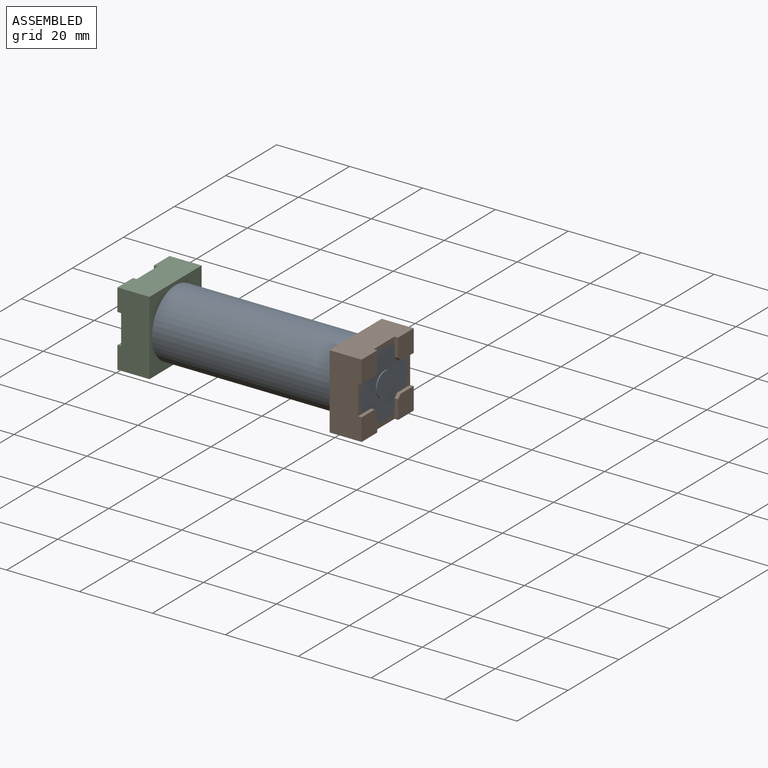
[diagram: assembled view]
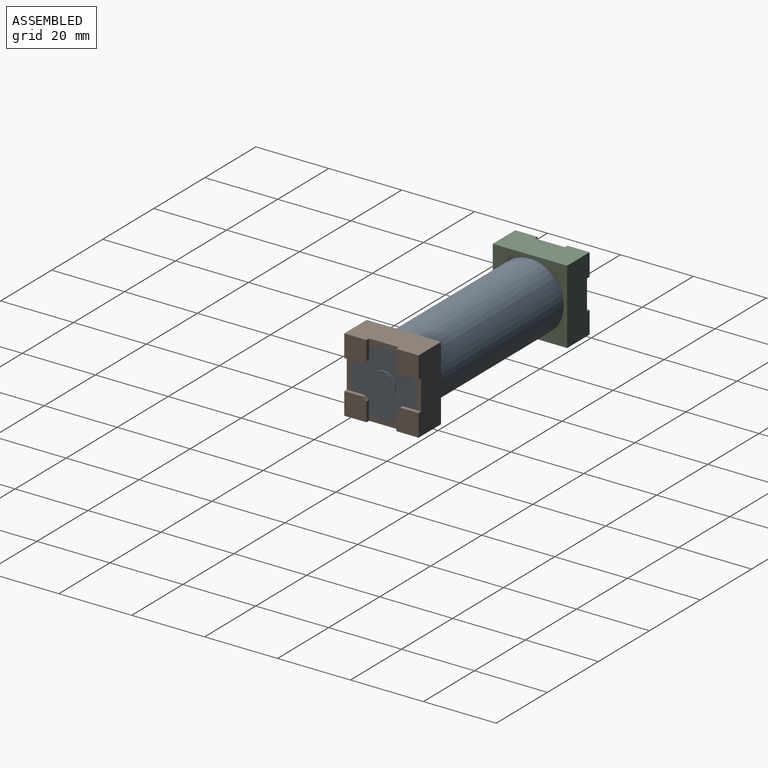
[diagram: assembled view, second angle]
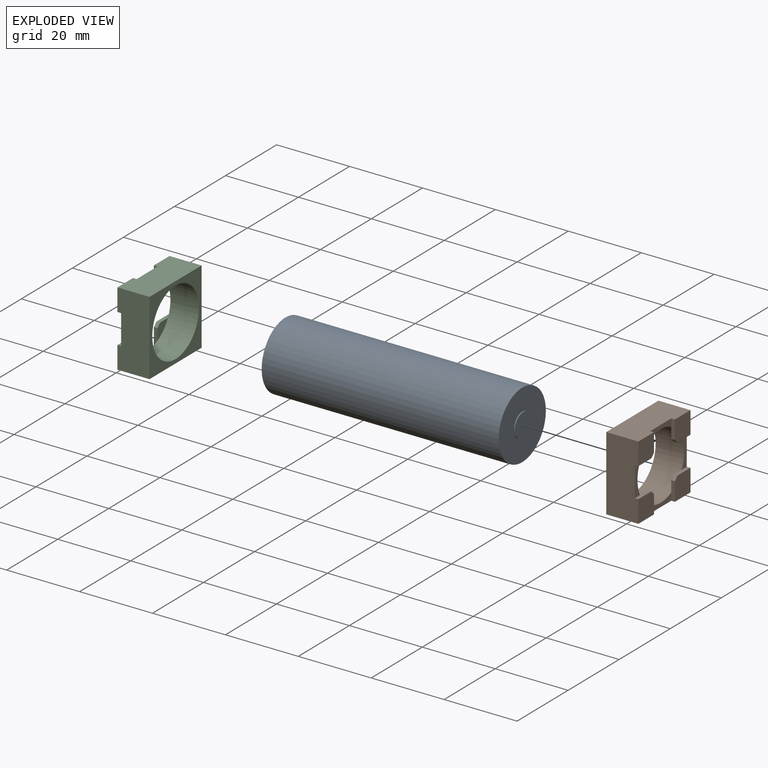
[diagram: exploded view]
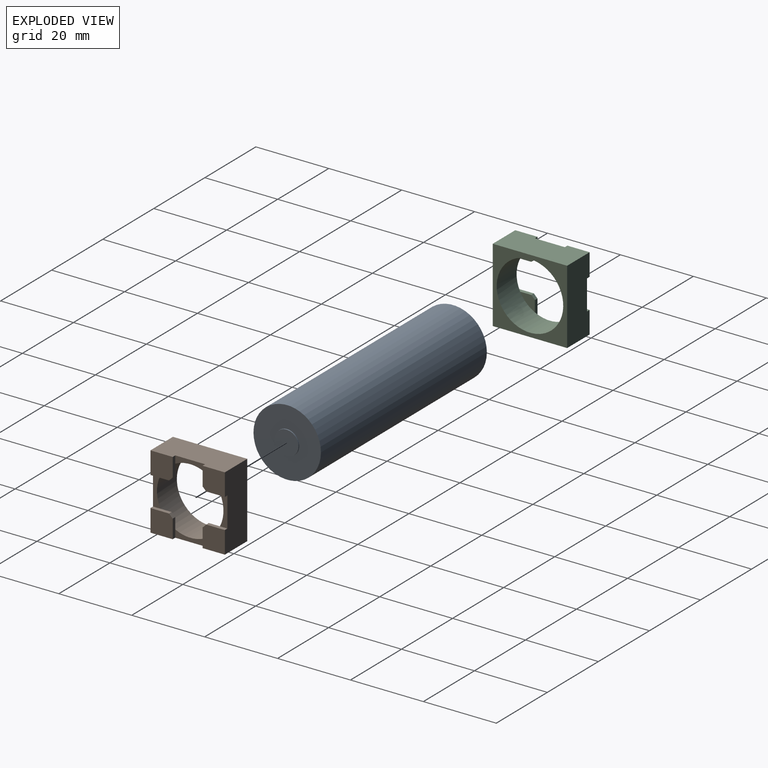
[diagram: exploded view, second angle]
ASSEMBLY  parts=3 mates=2
PART A: 5 faces, bbox 18.5x65.3x18.5 mm
  f0: cylinder r=9.25mm len=65mm, axis (0,1,0), area 3777.8mm2, adj f1,f2
  f1: plane 18.5x18.5mm, normal (0,-1,0), area 234.6mm2, adj f0,f3
  f2: plane 18.5x18.5mm, normal (0,1,0), area 268.8mm2, adj f0
  f3: cylinder r=3.3mm len=6.6mm, axis (0,1,0), area 6.2mm2, adj f1,f4
  f4: plane 6.6x6.6mm, normal (0,-1,0), area 34.2mm2, adj f3
PART B: 30 faces, bbox 20.4x20.4x8.8 mm
  f0: plane 8.2x2.04mm, normal (0,0,1), area 11.4mm2, adj f5,f7,f10,f23
  f1: plane 8.2x2.04mm, normal (0,0,1), area 11.4mm2, adj f6,f7,f19,f24
  f2: plane 8.2x2.04mm, normal (0,0,1), area 11.4mm2, adj f7,f8,f15,f20
  f3: plane 8.2x2.04mm, normal (0,0,1), area 11.4mm2, adj f4,f7,f11,f16
  f4: plane 20.4x8.8mm, normal (0,1,0), area 171.3mm2, adj f3,f5,f8,f9,f11,f12,f16,f17
  f5: plane 20.4x8.8mm, normal (-1,0,0), area 171.3mm2, adj f0,f4,f6,f9,f10,f12,f23,f25
  f6: plane 20.4x8.8mm, normal (0,-1,0), area 171.3mm2, adj f1,f5,f8,f9,f19,f21,f24,f25
  f7: cylinder r=9.13mm len=18.26mm, axis (0,0,-1), area 447.5mm2, adj f0,f1,f2,f3,f9,f13,f14,f18
  f8: plane 20.4x8.8mm, normal (1,0,0), area 171.3mm2, adj f2,f4,f6,f9,f15,f17,f20,f21
  f9: plane 20.4x20.4mm, normal (0,0,-1), area 154.3mm2, adj f4,f5,f6,f7,f8
  f10: plane 5.1x1mm, normal (0,-1,0), area 5.1mm2, adj f0,f5,f12,f13,f29
  f11: plane 5.1x1mm, normal (1,0,0), area 5.1mm2, adj f3,f4,f12,f13,f29
  f12: plane 6.1x6.1mm, normal (0,0,1), area 36.7mm2, adj f4,f5,f10,f11,f29
  f13: plane 4.06x4.06mm, normal (0,0,-1), area 9.5mm2, adj f7,f10,f11,f29
  f14: plane 4.06x4.06mm, normal (0,0,-1), area 9.5mm2, adj f7,f15,f16,f28
  f15: plane 5.1x1mm, normal (0,-1,0), area 5.1mm2, adj f2,f8,f14,f17,f28
  f16: plane 5.1x1mm, normal (-1,0,0), area 5.1mm2, adj f3,f4,f14,f17,f28
  f17: plane 6.1x6.1mm, normal (0,0,1), area 36.7mm2, adj f4,f8,f15,f16,f28
  f18: plane 4.06x4.06mm, normal (0,0,-1), area 9.5mm2, adj f7,f19,f20,f26
  f19: plane 5.1x1mm, normal (-1,0,0), area 5.1mm2, adj f1,f6,f18,f21,f26
  f20: plane 5.1x1mm, normal (0,1,0), area 5.1mm2, adj f2,f8,f18,f21,f26
  f21: plane 6.1x6.1mm, normal (0,0,1), area 36.7mm2, adj f6,f8,f19,f20,f26
  f22: plane 4.06x4.06mm, normal (0,0,-1), area 9.5mm2, adj f7,f23,f24,f27
  f23: plane 5.1x1mm, normal (0,1,0), area 5.1mm2, adj f0,f5,f22,f25,f27
  f24: plane 5.1x1mm, normal (1,0,0), area 5.1mm2, adj f1,f6,f22,f25,f27
  f25: plane 6.1x6.1mm, normal (0,0,1), area 36.7mm2, adj f5,f6,f23,f24,f27
  f26: plane 1x1mm, normal (-0.71,0.71,0), area 1.4mm2, adj f18,f19,f20,f21
  f27: plane 1x1mm, normal (0.71,0.71,0), area 1.4mm2, adj f22,f23,f24,f25
  f28: plane 1x1mm, normal (-0.71,-0.71,0), area 1.4mm2, adj f14,f15,f16,f17
  f29: plane 1x1mm, normal (0.71,-0.71,0), area 1.4mm2, adj f10,f11,f12,f13
PART C: same geometry as B
PLACE A rot(axis=(0.58,-0.58,0.58),120deg) t=(34.14,49.81,89.29)mm
PLACE B rot(axis=(0.71,0,0.71),180deg) t=(58.84,49.81,89.29)mm
PLACE C rot(axis=(0,-1,0),90deg) t=(9.44,49.81,89.29)mm
MATE fastened A.f0 <-> B.f7  axis (1,0,0) through (66.64,49.81,89.29)mm
MATE fastened A.f0 <-> C.f7  axis (-1,0,0) through (1.64,49.81,89.29)mm
